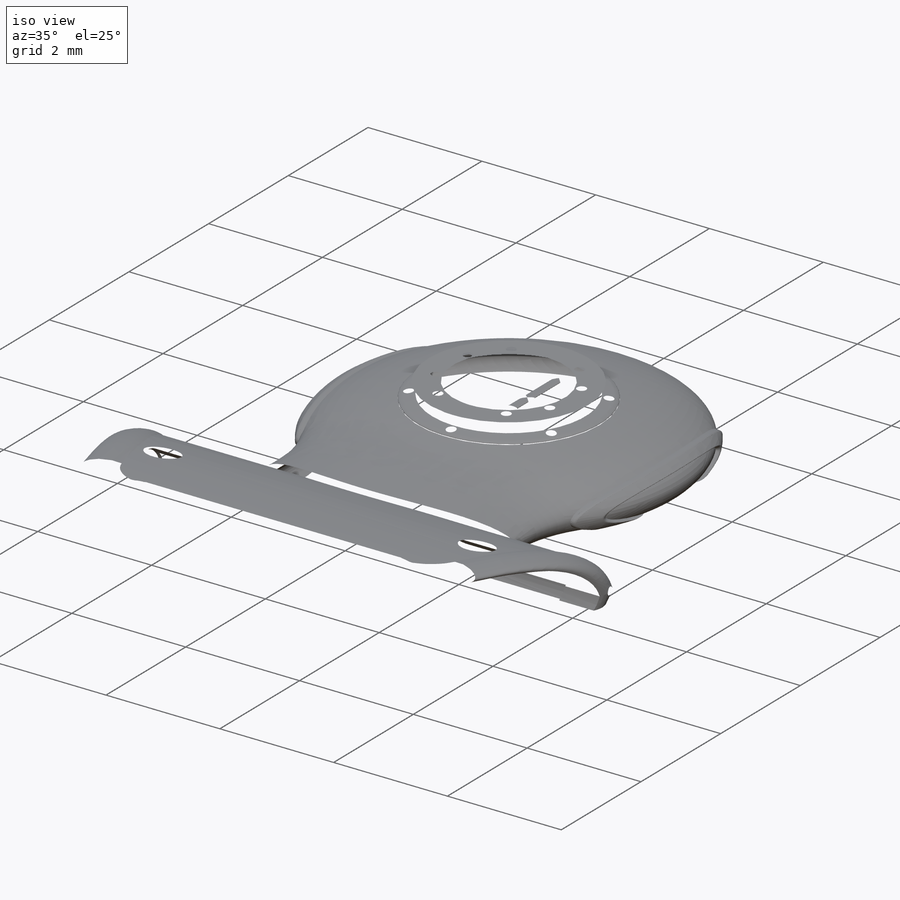
[diagram: iso view]
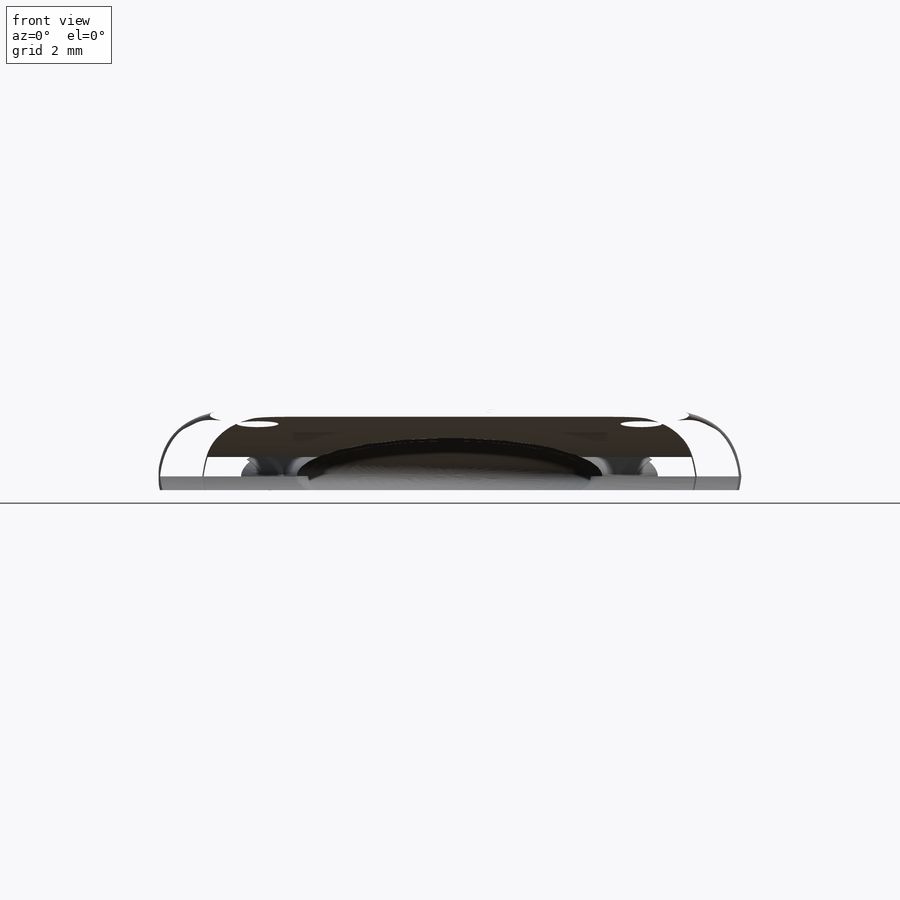
[diagram: front view]
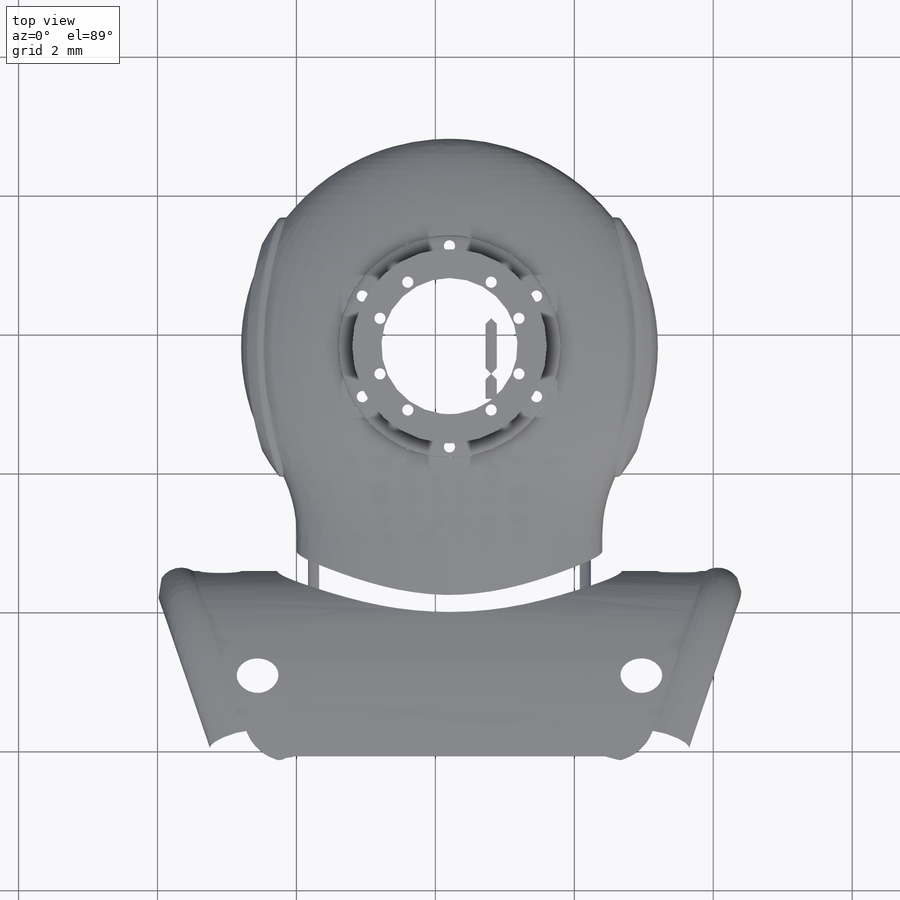
[diagram: top view]
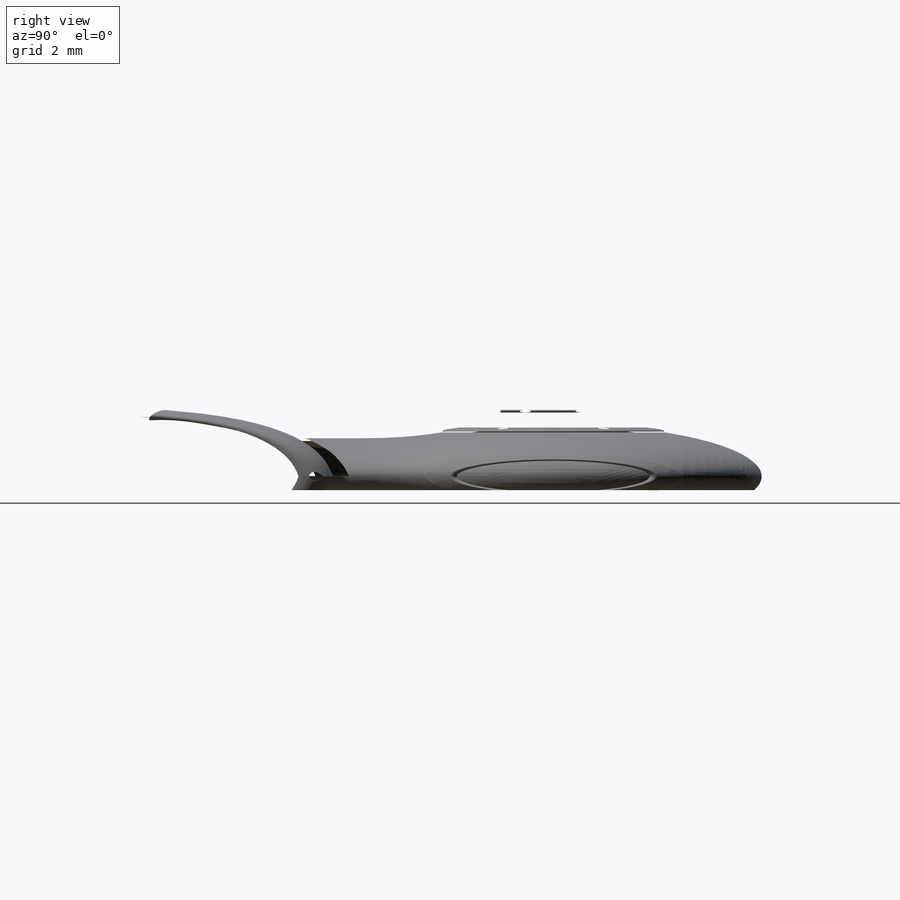
[diagram: right view]
SOLIDWORKS PART (.sldprt)
format: sldprt  version: not decoded by parser v0  size: 5,057,536 bytes
history: native  units: mm
features: sketch x19, cut_extrude x14, chamfer x5, fillet x5, extrude x3, material x1, pattern_circular x1, move_body x1 + 1 further entry (+16 scaffold rows collapsed; 5 parser-record rows omitted)
feature tree (71):
  scaffold x16  (default folders/planes/origin — collapsed)
  material  "Material <not specified>"
  sketch  "Sketch1"  dims[D1=38.8mm]
  extrude  "Boss-Extrude1"  Depth=4.3mm
  sketch  "Sketch2"  dims[D1=38.0mm]
  cut_extrude  "Cut-Extrude1"  Depth=1mm
  chamfer  "Chamfer1"  Distance=2.5mm Angle=65deg
  sketch  "Sketch3"  dims[D1=2.0mm D2=1.0mm D3=16.0mm]
  cut_extrude  "Cut-Extrude2"  Depth=2.5mm
  pattern_circular  "CirPattern1"  Count=6  [1 undecoded]
  sketch  "Sketch4"  dims[D1=0.1mm]
  cut_extrude  "Cut-Extrude3"  Depth=0.1mm
  sketch  "Sketch5"
  cut_extrude  "Cut-Extrude4"  Depth=0.75mm
  chamfer  "Chamfer2"  Distance=0.75mm
  sketch  "Sketch6"
  sketch  "Sketch7"
  cut_extrude  "Cut-Extrude5"  Depth=0.1mm
  sketch  "Sketch8"
  cut_extrude  "Cut-Extrude6"  Depth=0.02mm
  sketch  "Sketch9"  dims[D1=0.0mm]
  cut_extrude  "Cut-Extrude7"  Depth=10mm
  sketch  "Sketch10"  dims[D1=36.5mm]
  cut_extrude  "Cut-Extrude8"  Depth=1.5mm
  fillet  "Fillet2"  Radius=0.02mm
  sketch  "Sketch11"  dims[D1=0.0mm]
  extrude  "Boss-Extrude2"  Depth=0.4mm
  sketch  "Sketch12"
  extrude  "Boss-Extrude3"  Depth=0.15mm
  sketch  "Sketch13"  dims[D1=30.0mm]
  cut_extrude  "Cut-Extrude9"  Depth=3mm
  chamfer  "Chamfer3"  Distance=2mm
  chamfer  "Chamfer4"  Distance=1mm
  sketch  "Sketch14"
  sketch  "Sketch15"
  cut_extrude  "Cut-Extrude10"  Depth=0.01mm
  fillet  "Fillet4"  Radius=0.05mm
  "Escafandra"
  parser-record x5  (decoder bookkeeping rows leaked as tree rows — omitted from the tree; the rows remain in map.json)
  move_body  "Body-Move/Copy6"
  sketch  "Sketch16"
  cut_extrude  "Cut-Extrude11"  Depth=0.05mm
  sketch  "Sketch17"  dims[D1=3.0mm]
  cut_extrude  "Cut-Extrude12"  [1 undecoded]
  sketch  "Sketch18"
  cut_extrude  "Cut-Extrude13"  Depth=10mm
  fillet  "Fillet5"  Radius=20mm
  sketch  "Sketch19"
  cut_extrude  "Cut-Extrude14"  Depth=10mm
  chamfer  "Chamfer7"  Distance=0.75mm
  fillet  "Fillet6"  Radius=0.05mm
  fillet  "Fillet7"  Radius=0.05mm
decode coverage: 36 of 48 modeling features carry decoded parameters; 1 rows unclassified (native names shown)
note: 2 parameter values undecoded
note: suppression state not decoded; provenance and decode notes live in map.json
